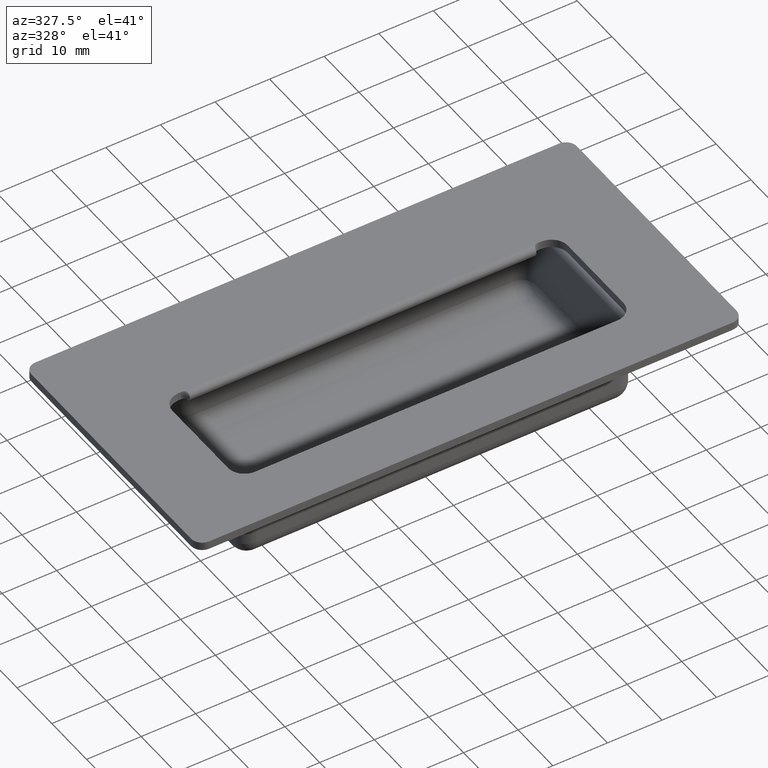
[diagram: clean part render]
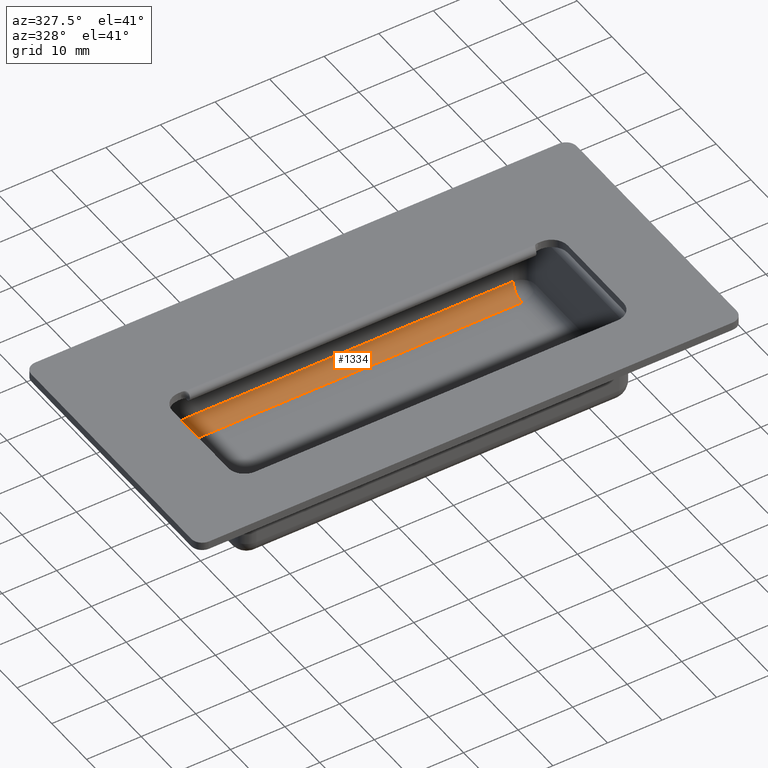
[diagram: same view with one face highlighted and labeled with its STEP entity id]
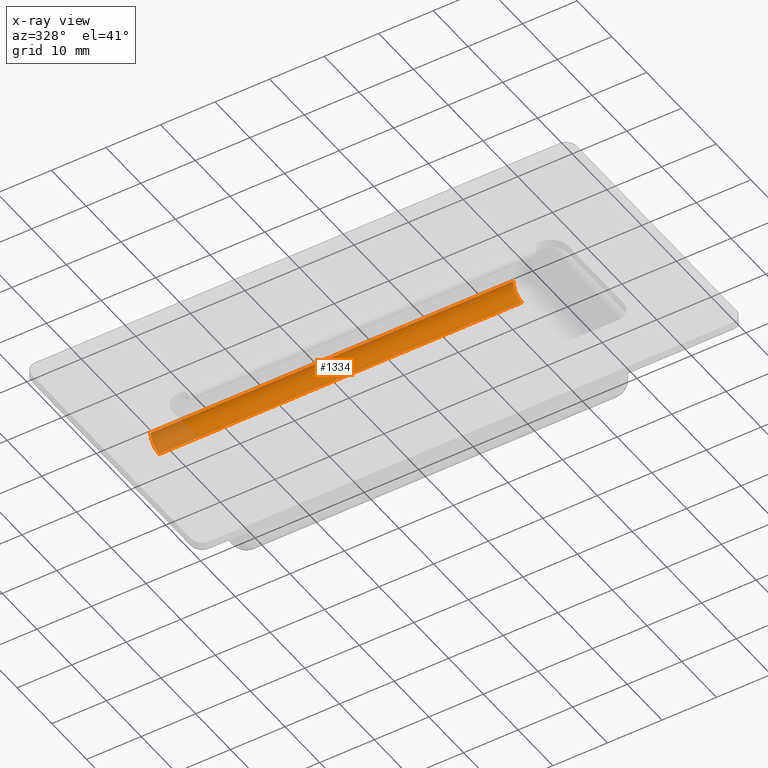
[diagram: x-ray of the same camera — body ghosted, the highlighted face saturated]
A machine part, auxiliary view. The second image highlights one B-rep face of the part: STEP entity #1334.
The next image is the same camera in x-ray: the body ghosted, the highlighted face saturated — about 10% of this face is hidden behind the body in this view.
In plain terms, the highlighted cylindrical surface (edge-blend (fillet) strip) has radius 2.5 mm, axis along (1, 0, 0).
Its self-contained STEP definition (entity closure, byte-faithful):
#48=CYLINDRICAL_SURFACE('',#1454,2.5);
#122=LINE('',#2395,#230);
#124=LINE('',#2404,#232);
#230=VECTOR('',#1730,66.5);
#232=VECTOR('',#1742,66.5);
#354=FACE_OUTER_BOUND('',#442,.T.);
#442=EDGE_LOOP('',(#1068,#1069,#1070,#1071));
#521=CIRCLE('',#1440,2.5);
#530=CIRCLE('',#1455,2.5);
#637=VERTEX_POINT('',#2371);
#638=VERTEX_POINT('',#2372);
#645=VERTEX_POINT('',#2394);
#647=VERTEX_POINT('',#2402);
#779=EDGE_CURVE('',#637,#638,#521,.T.);
#790=EDGE_CURVE('',#638,#645,#122,.T.);
#794=EDGE_CURVE('',#645,#647,#530,.T.);
#795=EDGE_CURVE('',#647,#637,#124,.T.);
#1068=ORIENTED_EDGE('',*,*,#794,.F.);
#1069=ORIENTED_EDGE('',*,*,#790,.F.);
#1070=ORIENTED_EDGE('',*,*,#779,.F.);
#1071=ORIENTED_EDGE('',*,*,#795,.F.);
#1334=ADVANCED_FACE('',(#354),#48,.F.);
#1440=AXIS2_PLACEMENT_3D('',#2373,#1704,#1705);
#1454=AXIS2_PLACEMENT_3D('',#2401,#1738,#1739);
#1455=AXIS2_PLACEMENT_3D('',#2403,#1740,#1741);
#1704=DIRECTION('center_axis',(-1.,0.,0.));
#1705=DIRECTION('ref_axis',(0.,1.,0.));
#1730=DIRECTION('',(-1.,0.,0.));
#1738=DIRECTION('center_axis',(1.,0.,0.));
#1739=DIRECTION('ref_axis',(0.,0.707106781186548,-0.707106781186547));
#1740=DIRECTION('center_axis',(1.,0.,0.));
#1741=DIRECTION('ref_axis',(0.,0.,-1.));
#1742=DIRECTION('',(1.,0.,0.));
#2371=CARTESIAN_POINT('',(33.25,15.,-12.5));
#2372=CARTESIAN_POINT('',(33.25,12.5,-15.));
#2373=CARTESIAN_POINT('Origin',(33.25,12.5,-12.5));
#2394=CARTESIAN_POINT('',(-33.25,12.5,-15.));
#2395=CARTESIAN_POINT('',(18.125,12.5,-15.));
#2401=CARTESIAN_POINT('Origin',(18.125,12.5,-12.5));
#2402=CARTESIAN_POINT('',(-33.25,15.,-12.5));
#2403=CARTESIAN_POINT('Origin',(-33.25,12.5,-12.5));
#2404=CARTESIAN_POINT('',(18.125,15.,-12.5));